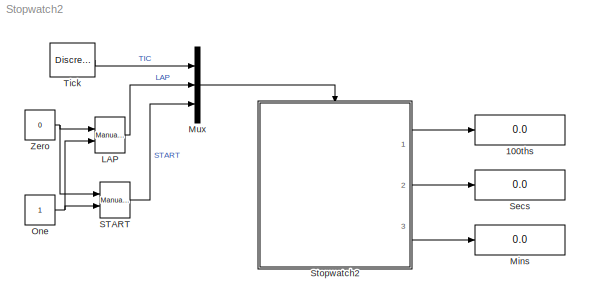
MODEL Stopwatch2
KIND model
CONFIG AbsTol = auto
CONFIG FixedStep = auto
CONFIG MaxStep = auto
CONFIG MinStep = auto
CONFIG RelTol = 1e-3
CONFIG Solver = FixedStepDiscrete
CONFIG SolverMode = Auto
CONFIG StartTime = 0.0
CONFIG StopTime = 100000.0
BLOCK [Display] 100ths
  Decimation = 1
  Ports = [1]
BLOCK [Reference] LAP  REF=simulink/Signal\nRouting/Manual Switch
  Ports = [2, 1]
  SourceBlock = simulink/Signal\nRouting/Manual Switch
  SourceType = Manual Switch
  action = 0
  sw = 1
BLOCK [Display] Mins
  Decimation = 1
  Ports = [1]
BLOCK [Mux] Mux
  DisplayOption = bar
  Inputs = 3
  Ports = [3, 1]
BLOCK [Constant] One
BLOCK [Reference] START  REF=simulink/Signal\nRouting/Manual Switch
  Ports = [2, 1]
  SourceBlock = simulink/Signal\nRouting/Manual Switch
  SourceType = Manual Switch
  action = 0
  sw = 1
BLOCK [Display] Secs
  Decimation = 1
  Ports = [1]
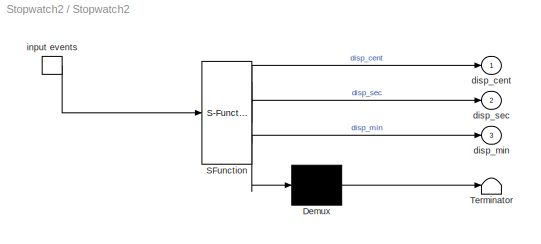
BLOCK [SubSystem] Stopwatch2
  MaskDescription = Stateflow diagram
  MaskDisplay = plot(sf('Private','sfblk','xIcon'),sf('Private','sfblk','yIcon'));text(0.5,0,sf('Private', 'sfblk', 'tIcon'),'HorizontalAl','Center','VerticalAl','Bottom');
  MaskIconFrame = off
  MaskIconOpaque = off
  MaskIconRotate = none
  MaskIconUnits = autoscale
  MaskSelfModifiable = on
  MaskType = Stateflow
  Ports = [0, 3, 0, 1]
  TreatAsAtomicUnit = off
BLOCK [Demux] Stopwatch2/ Demux 
  Outputs = 1
  Ports = [1, 1]
BLOCK [S-Function] Stopwatch2/ SFunction 
  FunctionName = sf_sfun
  PortCounts = [1 4]
  Ports = [1, 4]
  Tag = Stateflow S-Function Stopwatch2 1
BLOCK [Terminator] Stopwatch2/ Terminator 
BLOCK [TriggerPort] Stopwatch2/ input events 
  Ports = [0, 1]
  ShowOutputPort = on
  TriggerType = either
BLOCK [Outport] Stopwatch2/disp_cent
BLOCK [Outport] Stopwatch2/disp_min
  Port = 3
BLOCK [Outport] Stopwatch2/disp_sec
  Port = 2
BLOCK [DiscretePulseGenerator] Tick
  SampleTime = 0.01
  VectorParams1D = off
BLOCK [Constant] Zero
  Value = 0
LINE LAP:1 -> Mux:2
LINE Mux:1 -> Stopwatch2:trigger
NET One:1 -> LAP:2, START:2
LINE START:1 -> Mux:3
LINE Stopwatch2/ Demux :1 -> Stopwatch2/ Terminator :1
LINE Stopwatch2/ SFunction :1 -> Stopwatch2/ Demux :1
LINE Stopwatch2/ SFunction :2 -> Stopwatch2/disp_cent:1
LINE Stopwatch2/ SFunction :3 -> Stopwatch2/disp_sec:1
LINE Stopwatch2/ SFunction :4 -> Stopwatch2/disp_min:1
LINE Stopwatch2/ input events :1 -> Stopwatch2/ SFunction :1
LINE Stopwatch2:1 -> 100ths:1
LINE Stopwatch2:2 -> Secs:1
LINE Stopwatch2:3 -> Mins:1
LINE Tick:1 -> Mux:1
NET Zero:1 -> LAP:1, START:1
note: NET lines group one-source signal fan-out (src -> all destinations, sorted); 1:1 wires keep LINE
CHART Stopwatch2 states=6 transitions=14
  STATE_LABEL 'Lap'
  STATE_LABEL 'Running/\\ndu:\\ndisp_cent=cent;\\ndisp_sec=sec;\\ndisp_min=min;'
  STATE_LABEL 'Lap_stop'
  STATE_LABEL 'Stop'
  STATE_LABEL 'Run'
  STATE_LABEL 'Reset/\\non LAP:\\ncent=0; sec=0; min=0;\\ndisp_cent=0; disp_sec=0;\\ndisp_min=0;'
